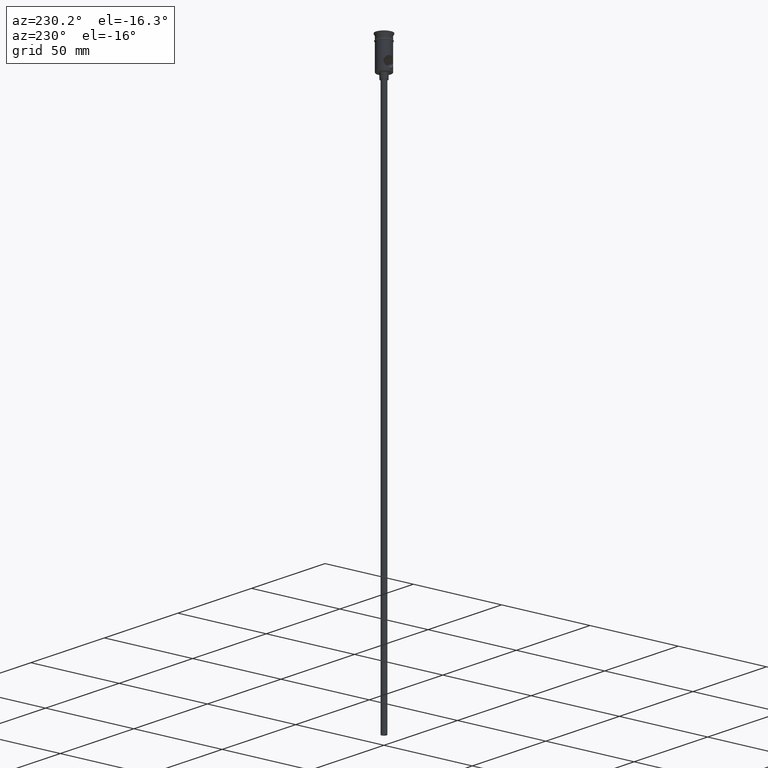
[diagram: clean part render]
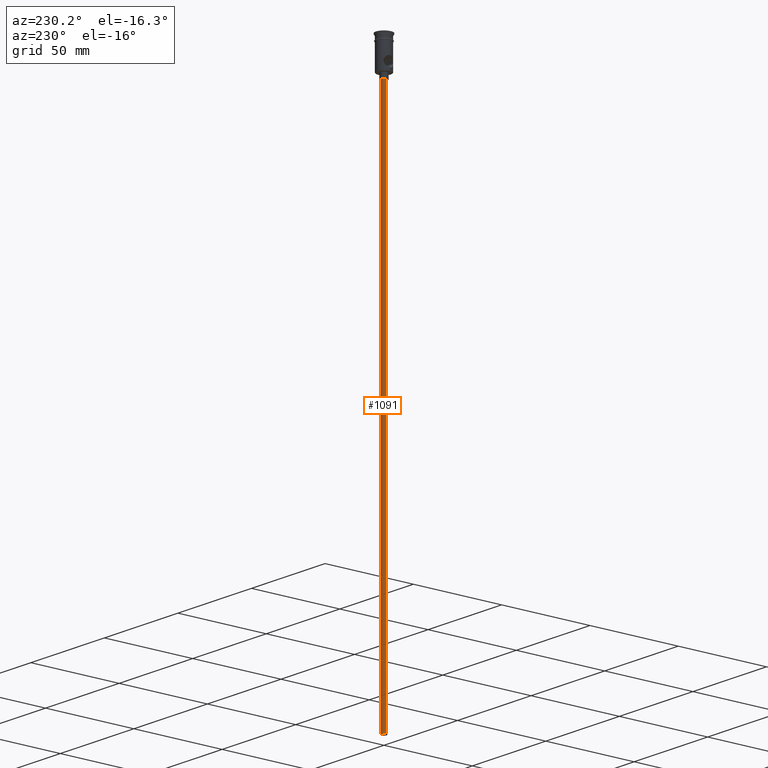
[diagram: same view with one face highlighted and labeled with its STEP entity id]
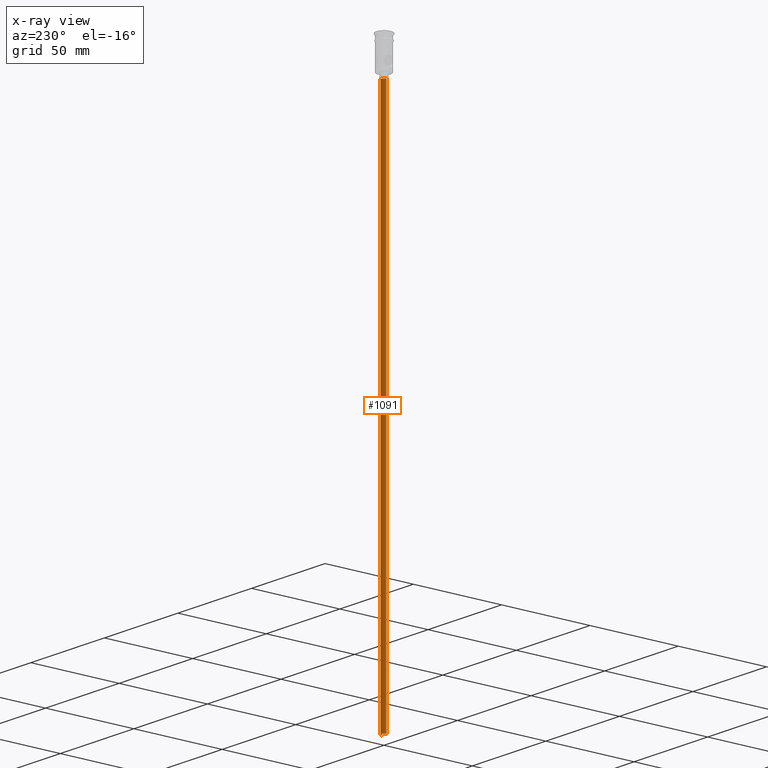
[diagram: x-ray of the same camera — body ghosted, the highlighted face saturated]
A machine part, auxiliary view. The second image highlights one B-rep face of the part: STEP entity #1091.
The next image is the same camera in x-ray: the body ghosted, the highlighted face saturated — about 0% of this face is hidden behind the body in this view.
In plain terms, the highlighted cylindrical surface (edge-blend (fillet) strip) has radius 1.5 mm, axis along (-0, -0, 1).
Its self-contained STEP definition (entity closure, byte-faithful):
#71 = DIRECTION ( 'NONE',  ( 1.000000000000000000, 0.000000000000000000, 0.000000000000000000 ) ) ;
#136 = EDGE_CURVE ( 'NONE', #664, #577, #1049, .T. ) ;
#155 = AXIS2_PLACEMENT_3D ( 'NONE', #412, #1190, #1301 ) ;
#168 = CARTESIAN_POINT ( 'NONE',  ( 0.000000000000000000, 0.000000000000000000, -318.0000000000000000 ) ) ;
#179 = EDGE_CURVE ( 'NONE', #693, #577, #828, .T. ) ;
#213 = EDGE_LOOP ( 'NONE', ( #562, #1224, #1108, #1102 ) ) ;
#233 = DIRECTION ( 'NONE',  ( -0.000000000000000000, -0.000000000000000000, 1.000000000000000000 ) ) ;
#278 = CARTESIAN_POINT ( 'NONE',  ( 0.000000000000000000, 0.000000000000000000, -318.0000000000000000 ) ) ;
#284 = DIRECTION ( 'NONE',  ( -0.000000000000000000, -0.000000000000000000, 1.000000000000000000 ) ) ;
#305 = CARTESIAN_POINT ( 'NONE',  ( -1.500000000000000222, 1.836970198721030181E-16, -20.99999999999999645 ) ) ;
#331 = VECTOR ( 'NONE', #850, 1000.000000000000000 ) ;
#332 = AXIS2_PLACEMENT_3D ( 'NONE', #168, #415, #1073 ) ;
#355 = EDGE_CURVE ( 'NONE', #1152, #693, #1235, .T. ) ;
#412 = CARTESIAN_POINT ( 'NONE',  ( 0.000000000000000000, 0.000000000000000000, -20.99999999999999645 ) ) ;
#415 = DIRECTION ( 'NONE',  ( 0.000000000000000000, 0.000000000000000000, -1.000000000000000000 ) ) ;
#502 = CARTESIAN_POINT ( 'NONE',  ( 1.500000000000000222, 0.000000000000000000, -318.0000000000000000 ) ) ;
#504 = CIRCLE ( 'NONE', #332, 1.500000000000000222 ) ;
#562 = ORIENTED_EDGE ( 'NONE', *, *, #642, .F. ) ;
#577 = VERTEX_POINT ( 'NONE', #809 ) ;
#623 = CARTESIAN_POINT ( 'NONE',  ( -1.500000000000000222, 1.836970198721030181E-16, -318.0000000000000000 ) ) ;
#642 = EDGE_CURVE ( 'NONE', #1152, #664, #504, .T. ) ;
#664 = VERTEX_POINT ( 'NONE', #744 ) ;
#693 = VERTEX_POINT ( 'NONE', #305 ) ;
#722 = AXIS2_PLACEMENT_3D ( 'NONE', #278, #284, #71 ) ;
#744 = CARTESIAN_POINT ( 'NONE',  ( 1.500000000000000222, 0.000000000000000000, -318.0000000000000000 ) ) ;
#809 = CARTESIAN_POINT ( 'NONE',  ( 1.500000000000000222, 0.000000000000000000, -20.99999999999999645 ) ) ;
#828 = CIRCLE ( 'NONE', #155, 1.500000000000000222 ) ;
#842 = FACE_OUTER_BOUND ( 'NONE', #213, .T. ) ;
#850 = DIRECTION ( 'NONE',  ( -0.000000000000000000, -0.000000000000000000, 1.000000000000000000 ) ) ;
#978 = CARTESIAN_POINT ( 'NONE',  ( -1.500000000000000222, 1.836970198721030181E-16, -318.0000000000000000 ) ) ;
#1035 = VECTOR ( 'NONE', #233, 1000.000000000000000 ) ;
#1049 = LINE ( 'NONE', #502, #331 ) ;
#1073 = DIRECTION ( 'NONE',  ( -1.000000000000000000, 0.000000000000000000, 0.000000000000000000 ) ) ;
#1091 = ADVANCED_FACE ( 'NONE', ( #842 ), #1185, .T. ) ;
#1102 = ORIENTED_EDGE ( 'NONE', *, *, #136, .F. ) ;
#1108 = ORIENTED_EDGE ( 'NONE', *, *, #179, .T. ) ;
#1152 = VERTEX_POINT ( 'NONE', #623 ) ;
#1185 = CYLINDRICAL_SURFACE ( 'NONE', #722, 1.500000000000000222 ) ;
#1190 = DIRECTION ( 'NONE',  ( 0.000000000000000000, 0.000000000000000000, -1.000000000000000000 ) ) ;
#1224 = ORIENTED_EDGE ( 'NONE', *, *, #355, .T. ) ;
#1235 = LINE ( 'NONE', #978, #1035 ) ;
#1301 = DIRECTION ( 'NONE',  ( -1.000000000000000000, 0.000000000000000000, 0.000000000000000000 ) ) ;